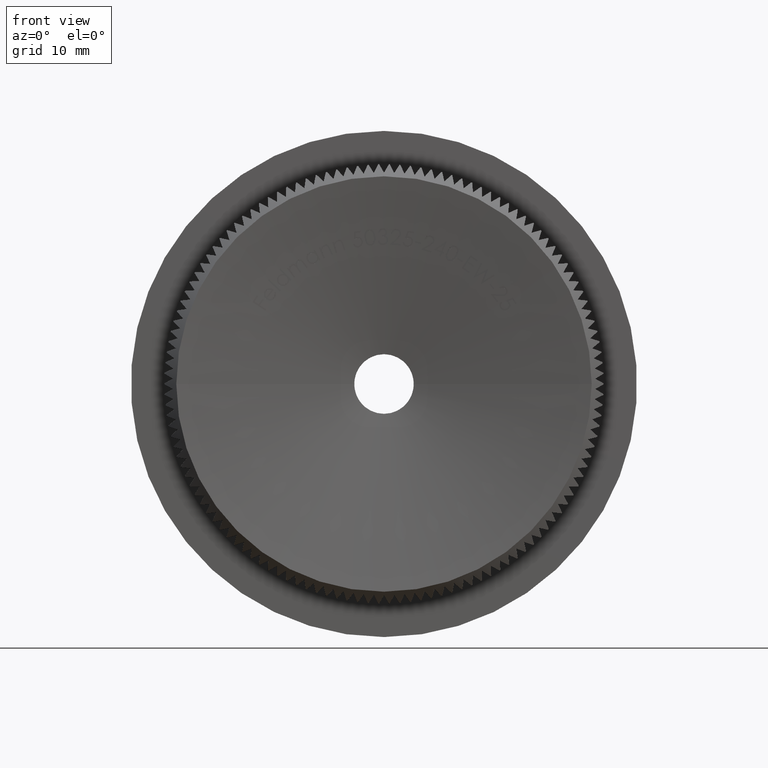
[diagram: clean part render]
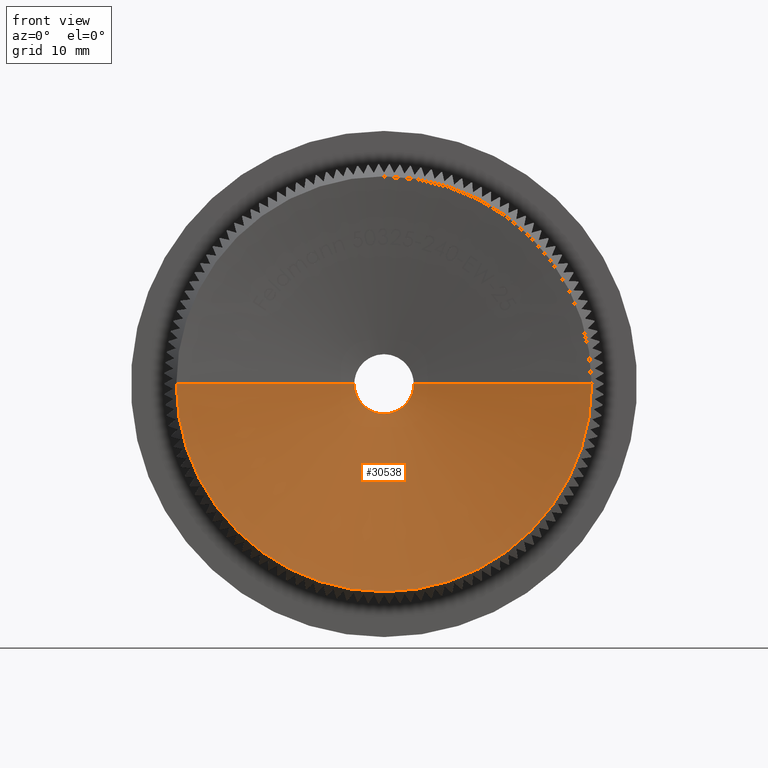
[diagram: same view with one face highlighted and labeled with its STEP entity id]
A machine part, front view. The second image highlights one B-rep face of the part: STEP entity #30538.
In plain terms, the highlighted conical surface has half-angle 80 deg.
Its self-contained STEP definition (entity closure, byte-faithful):
#848 = LINE ( 'NONE', #26038, #27761 ) ;
#1288 = EDGE_CURVE ( 'NONE', #3777, #9859, #19787, .T. ) ;
#1516 = DIRECTION ( 'NONE',  ( 1.000000000000000000, 0.0000000000000000000, 0.0000000000000000000 ) ) ;
#1806 = ORIENTED_EDGE ( 'NONE', *, *, #27541, .F. ) ;
#2056 = DIRECTION ( 'NONE',  ( -1.197459949806440200E-017, -1.000000000000000000, -0.0000000000000000000 ) ) ;
#2559 = DIRECTION ( 'NONE',  ( 0.9848077530122093500, -0.1736481776669234500, 0.0000000000000000000 ) ) ;
#3777 = VERTEX_POINT ( 'NONE', #29891 ) ;
#3809 = ORIENTED_EDGE ( 'NONE', *, *, #30610, .T. ) ;
#3903 = CARTESIAN_POINT ( 'NONE',  ( 3.146053012283196100E-017, 2.627272012556019400, 0.0000000000000000000 ) ) ;
#3966 = VERTEX_POINT ( 'NONE', #25619 ) ;
#4409 = CIRCLE ( 'NONE', #8069, 2.500000000000000000 ) ;
#4651 = CARTESIAN_POINT ( 'NONE',  ( 3.146053012283196100E-017, 2.627272012556019400, 0.0000000000000000000 ) ) ;
#4750 = DIRECTION ( 'NONE',  ( 1.000000000000000000, 0.0000000000000000000, 0.0000000000000000000 ) ) ;
#7135 = EDGE_CURVE ( 'NONE', #3966, #27813, #27363, .T. ) ;
#8027 = CARTESIAN_POINT ( 'NONE',  ( 9.497376713513943400E-033, 7.931268778591816800E-016, 0.0000000000000000000 ) ) ;
#8064 = LINE ( 'NONE', #23946, #25403 ) ;
#8069 = AXIS2_PLACEMENT_3D ( 'NONE', #3903, #8215, #1516 ) ;
#8215 = DIRECTION ( 'NONE',  ( 1.197459949806440200E-017, 1.000000000000000000, 0.0000000000000000000 ) ) ;
#8223 = EDGE_CURVE ( 'NONE', #16970, #3966, #27329, .T. ) ;
#8286 = CARTESIAN_POINT ( 'NONE',  ( 9.497376713513943400E-033, 7.931268778591816800E-016, 0.0000000000000000000 ) ) ;
#9086 = EDGE_LOOP ( 'NONE', ( #20299, #3809, #26434, #28377, #10432, #1806 ) ) ;
#9278 = DIRECTION ( 'NONE',  ( 1.000000000000000000, -1.197459949806440400E-017, 0.0000000000000000000 ) ) ;
#9832 = DIRECTION ( 'NONE',  ( -0.9848077530122093500, -0.1736481776669234500, 1.206041662501899300E-016 ) ) ;
#9859 = VERTEX_POINT ( 'NONE', #27147 ) ;
#10432 = ORIENTED_EDGE ( 'NONE', *, *, #7135, .T. ) ;
#11085 = CONICAL_SURFACE ( 'NONE', #26036, 17.39999999999999100, 1.396263401595470700 ) ;
#13360 = AXIS2_PLACEMENT_3D ( 'NONE', #4651, #13926, #4750 ) ;
#13926 = DIRECTION ( 'NONE',  ( 1.197459949806440200E-017, 1.000000000000000000, 0.0000000000000000000 ) ) ;
#15499 = DIRECTION ( 'NONE',  ( 1.000000000000000000, -1.197459949806440400E-017, 0.0000000000000000000 ) ) ;
#15842 = EDGE_CURVE ( 'NONE', #29960, #16970, #8064, .T. ) ;
#16970 = VERTEX_POINT ( 'NONE', #30187 ) ;
#17961 = CARTESIAN_POINT ( 'NONE',  ( -2.500000000000000000, 2.627272012556019400, 1.218523565151616000E-015 ) ) ;
#18450 = FACE_OUTER_BOUND ( 'NONE', #9086, .T. ) ;
#19787 = CIRCLE ( 'NONE', #13360, 2.500000000000000000 ) ;
#20299 = ORIENTED_EDGE ( 'NONE', *, *, #1288, .T. ) ;
#23946 = CARTESIAN_POINT ( 'NONE',  ( -17.39999999999999100, 1.001484909125502100E-015, 2.130885430516393700E-015 ) ) ;
#24432 = DIRECTION ( 'NONE',  ( 1.000000000000000000, -1.197459949806440400E-017, 0.0000000000000000000 ) ) ;
#24538 = DIRECTION ( 'NONE',  ( -1.197459949806440200E-017, -1.000000000000000000, -0.0000000000000000000 ) ) ;
#24608 = CARTESIAN_POINT ( 'NONE',  ( 17.39999999999999100, 5.847688465928611800E-016, 0.0000000000000000000 ) ) ;
#25403 = VECTOR ( 'NONE', #9832, 999.9999999999998900 ) ;
#25619 = CARTESIAN_POINT ( 'NONE',  ( 2.192117770473761700E-015, 7.931268778591816800E-016, -17.39999999999999100 ) ) ;
#25639 = CARTESIAN_POINT ( 'NONE',  ( 9.497376713513943400E-033, 7.931268778591816800E-016, 0.0000000000000000000 ) ) ;
#26036 = AXIS2_PLACEMENT_3D ( 'NONE', #8286, #29450, #15499 ) ;
#26038 = CARTESIAN_POINT ( 'NONE',  ( 17.39999999999999100, 5.847688465928611800E-016, 0.0000000000000000000 ) ) ;
#26434 = ORIENTED_EDGE ( 'NONE', *, *, #15842, .T. ) ;
#27147 = CARTESIAN_POINT ( 'NONE',  ( 3.061616997868382600E-016, 2.627272012556019400, -2.500000000000000000 ) ) ;
#27329 = CIRCLE ( 'NONE', #28341, 17.39999999999999100 ) ;
#27363 = CIRCLE ( 'NONE', #30287, 17.39999999999999100 ) ;
#27541 = EDGE_CURVE ( 'NONE', #3777, #27813, #848, .T. ) ;
#27761 = VECTOR ( 'NONE', #2559, 999.9999999999998900 ) ;
#27813 = VERTEX_POINT ( 'NONE', #24608 ) ;
#28341 = AXIS2_PLACEMENT_3D ( 'NONE', #25639, #2056, #9278 ) ;
#28377 = ORIENTED_EDGE ( 'NONE', *, *, #8223, .T. ) ;
#29450 = DIRECTION ( 'NONE',  ( -1.197459949806440200E-017, -1.000000000000000000, -0.0000000000000000000 ) ) ;
#29891 = CARTESIAN_POINT ( 'NONE',  ( 2.500000000000000000, 2.627272012556019400, 0.0000000000000000000 ) ) ;
#29960 = VERTEX_POINT ( 'NONE', #17961 ) ;
#30187 = CARTESIAN_POINT ( 'NONE',  ( -17.39999999999999100, 1.001484909125502100E-015, 2.130885430516393700E-015 ) ) ;
#30287 = AXIS2_PLACEMENT_3D ( 'NONE', #8027, #24538, #24432 ) ;
#30538 = ADVANCED_FACE ( 'NONE', ( #18450 ), #11085, .F. ) ;
#30610 = EDGE_CURVE ( 'NONE', #9859, #29960, #4409, .T. ) ;